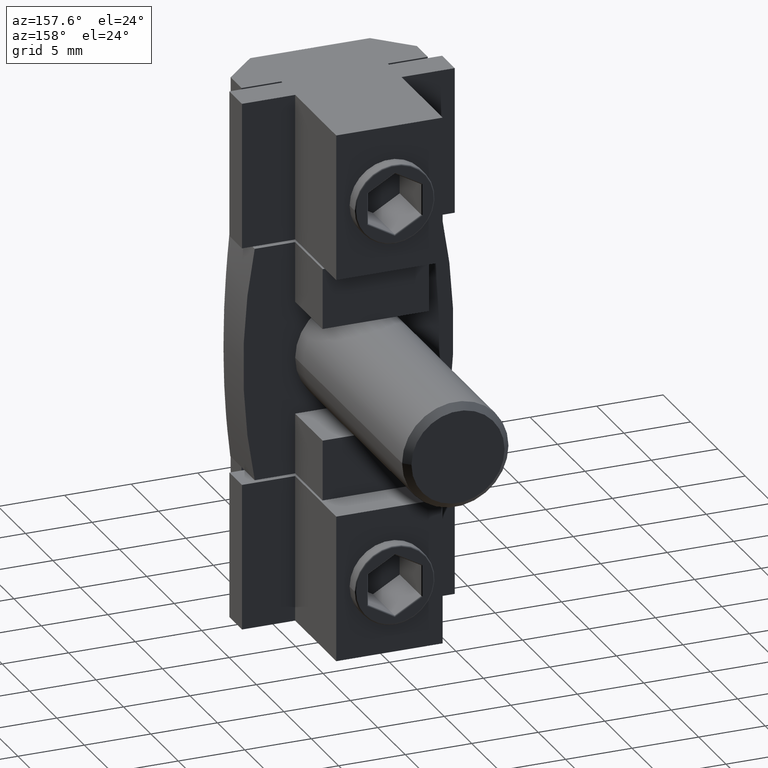
[diagram: clean part render]
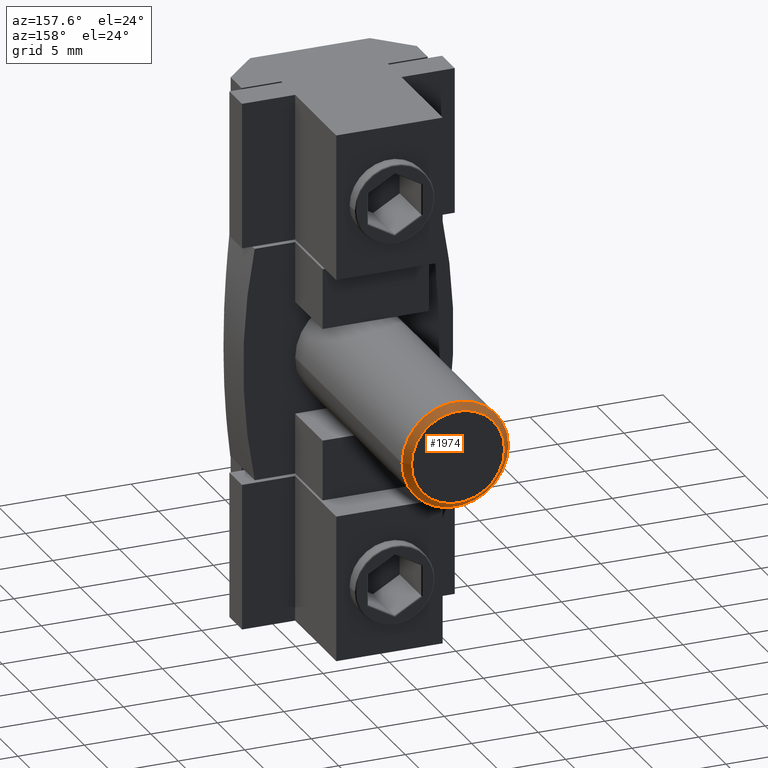
[diagram: same view with one face highlighted and labeled with its STEP entity id]
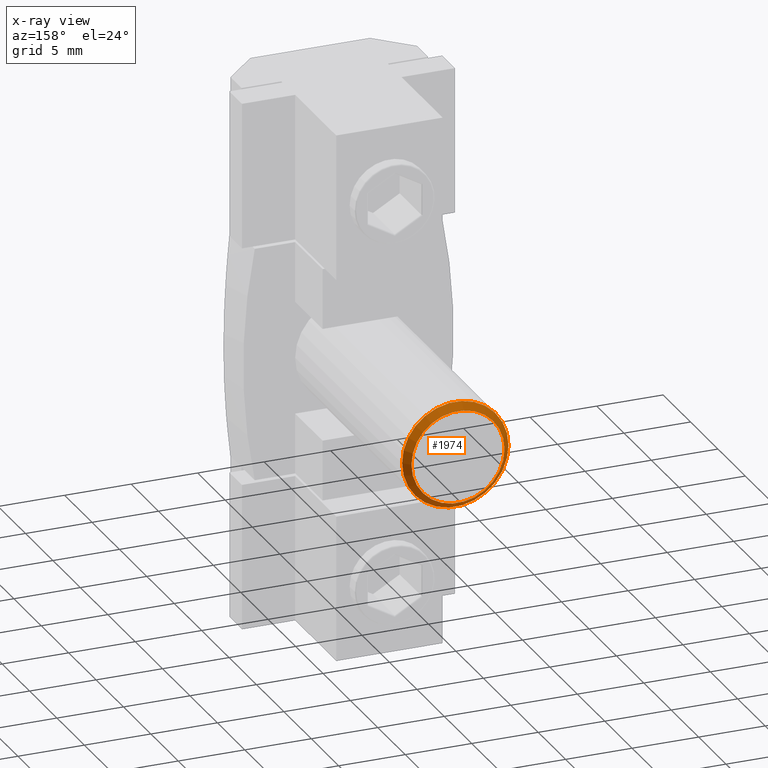
[diagram: x-ray of the same camera — body ghosted, the highlighted face saturated]
A machine part, auxiliary view. The second image highlights one B-rep face of the part: STEP entity #1974.
The next image is the same camera in x-ray: the body ghosted, the highlighted face saturated — about 0% of this face is hidden behind the body in this view.
In plain terms, the highlighted conical surface has half-angle 45 deg.
Its self-contained STEP definition (entity closure, byte-faithful):
#15=CONICAL_SURFACE('',#2157,3.75,0.78539816339745);
#67=CIRCLE('',#2158,3.5);
#68=CIRCLE('',#2159,4.);
#220=FACE_OUTER_BOUND('',#338,.T.);
#338=EDGE_LOOP('',(#1651,#1652,#1653,#1654));
#536=LINE('',#3234,#755);
#755=VECTOR('',#2586,3.75);
#973=VERTEX_POINT('',#3231);
#974=VERTEX_POINT('',#3233);
#1219=EDGE_CURVE('',#973,#973,#67,.T.);
#1220=EDGE_CURVE('',#973,#974,#536,.T.);
#1221=EDGE_CURVE('',#974,#974,#68,.T.);
#1651=ORIENTED_EDGE('',*,*,#1219,.T.);
#1652=ORIENTED_EDGE('',*,*,#1220,.T.);
#1653=ORIENTED_EDGE('',*,*,#1221,.T.);
#1654=ORIENTED_EDGE('',*,*,#1220,.F.);
#1974=ADVANCED_FACE('',(#220),#15,.T.);
#2157=AXIS2_PLACEMENT_3D('',#3230,#2582,#2583);
#2158=AXIS2_PLACEMENT_3D('',#3232,#2584,#2585);
#2159=AXIS2_PLACEMENT_3D('',#3235,#2587,#2588);
#2582=DIRECTION('center_axis',(0.,-1.,0.));
#2583=DIRECTION('ref_axis',(-1.,0.,0.));
#2584=DIRECTION('center_axis',(0.,-1.,0.));
#2585=DIRECTION('ref_axis',(-1.,0.,0.));
#2586=DIRECTION('',(0.707106781186549,-0.707106781186546,-8.65956056235495E-17));
#2587=DIRECTION('center_axis',(0.,1.,0.));
#2588=DIRECTION('ref_axis',(-1.,0.,0.));
#3230=CARTESIAN_POINT('Origin',(0.,22.25,0.));
#3231=CARTESIAN_POINT('',(3.5,22.5,4.28626379701574E-16));
#3232=CARTESIAN_POINT('Origin',(0.,22.5,0.));
#3233=CARTESIAN_POINT('',(4.,22.,-4.89858719658941E-16));
#3234=CARTESIAN_POINT('',(3.75,22.25,-4.59242549680257E-16));
#3235=CARTESIAN_POINT('Origin',(0.,22.,0.));